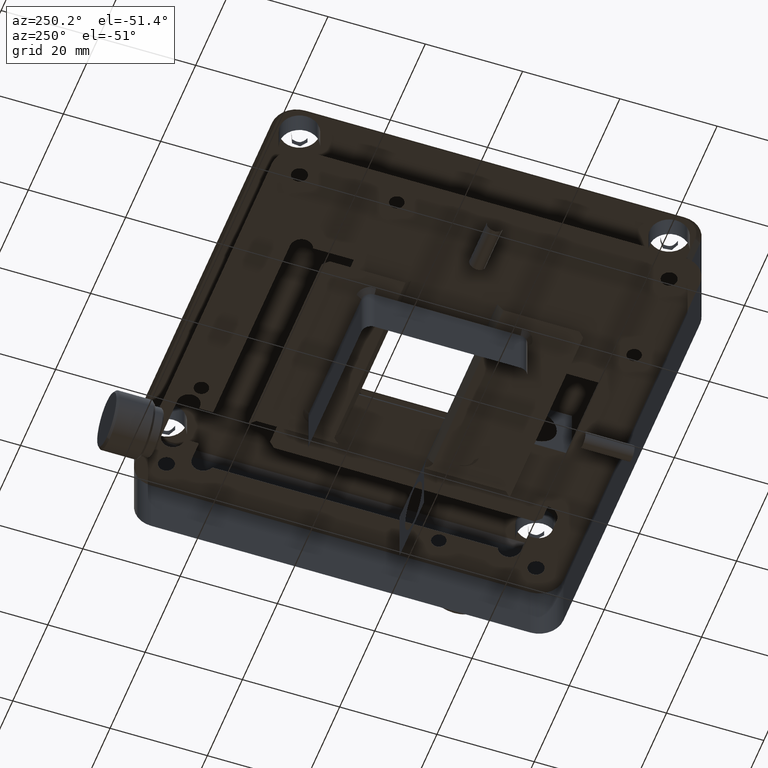
[diagram: clean part render]
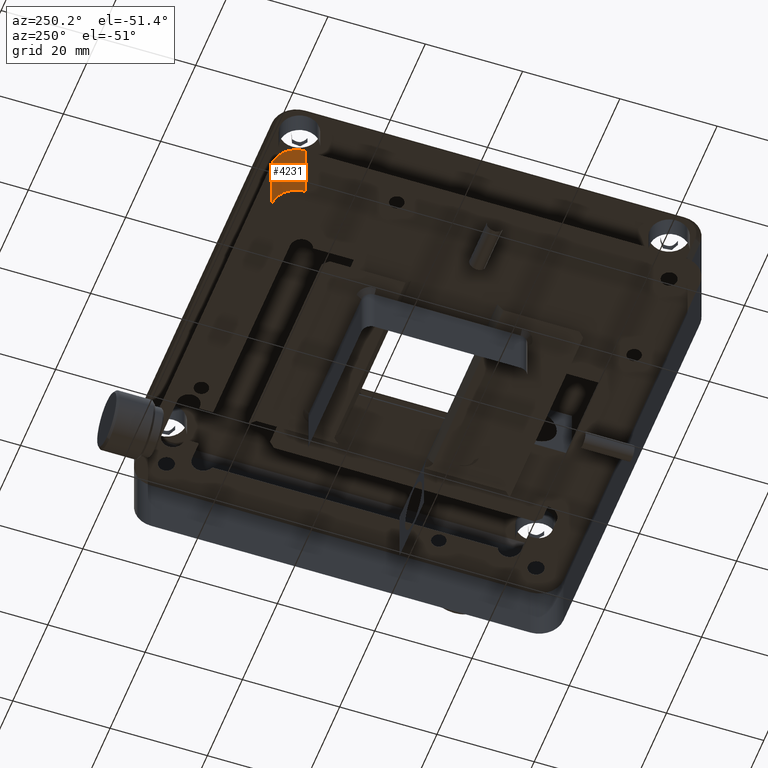
[diagram: same view with one face highlighted and labeled with its STEP entity id]
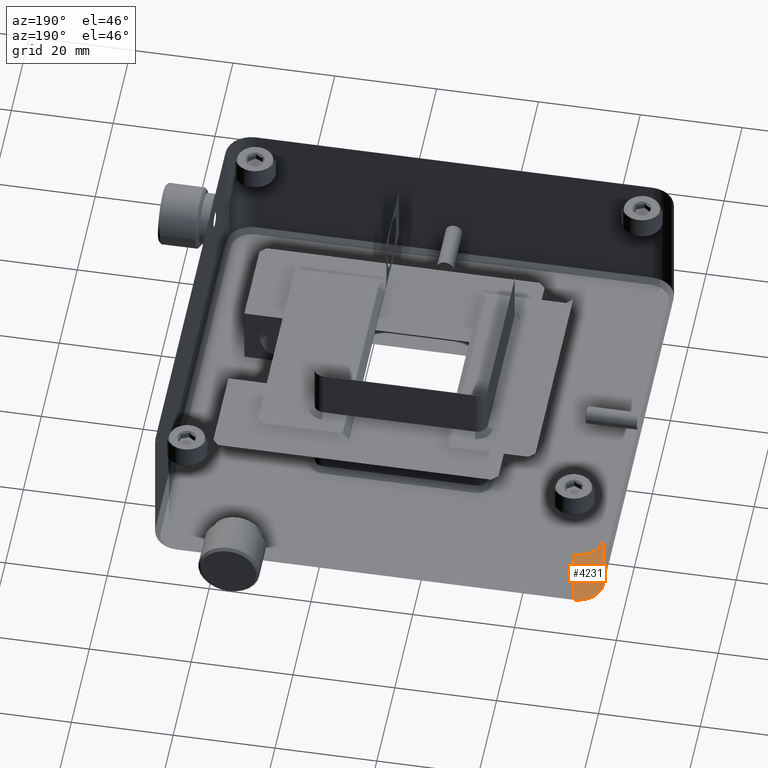
[diagram: same view with one face highlighted and labeled with its STEP entity id]
A machine part, auxiliary view. The second image highlights one B-rep face of the part: STEP entity #4231.
A second angle (auxiliary view) of the same face is appended — the face is thin or edge-on in the first view.
In plain terms, the highlighted cylindrical surface (edge-blend (fillet) strip) has radius 5 mm, axis along (0, 0, -1).
Its self-contained STEP definition (entity closure, byte-faithful):
#86 = ORIENTED_EDGE ( 'NONE', *, *, #1702, .T. ) ;
#175 = CARTESIAN_POINT ( 'NONE',  ( 49.50874693731116594, 73.68000000000000682, 8.674000000000001265 ) ) ;
#256 = CARTESIAN_POINT ( 'NONE',  ( 44.50874693731953613, 68.68000000000000682, -3.825999999986702704 ) ) ;
#393 = CARTESIAN_POINT ( 'NONE',  ( 49.50874693731116594, 68.68000000000000682, 8.674000000000001265 ) ) ;
#741 = CARTESIAN_POINT ( 'NONE',  ( 49.50874693731116594, 68.68000000000000682, -3.825999999946816388 ) ) ;
#820 = DIRECTION ( 'NONE',  ( -0.000000000000000000, -0.000000000000000000, -1.000000000000000000 ) ) ;
#946 = FACE_OUTER_BOUND ( 'NONE', #3670, .T. ) ;
#1126 = VECTOR ( 'NONE', #4183, 1000.000000000000000 ) ;
#1405 = AXIS2_PLACEMENT_3D ( 'NONE', #393, #4238, #5887 ) ;
#1485 = DIRECTION ( 'NONE',  ( -1.000000000000000000, 0.000000000000000000, 0.000000000000000000 ) ) ;
#1702 = EDGE_CURVE ( 'NONE', #4021, #4374, #2497, .T. ) ;
#1983 = DIRECTION ( 'NONE',  ( 0.000000000000000000, 0.000000000000000000, -1.000000000000000000 ) ) ;
#2021 = EDGE_CURVE ( 'NONE', #4021, #4762, #4756, .T. ) ;
#2497 = CIRCLE ( 'NONE', #6133, 4.999999999966517450 ) ;
#2586 = CARTESIAN_POINT ( 'NONE',  ( 49.50874693731116594, 68.68000000000000682, 8.674000000000001265 ) ) ;
#2622 = VECTOR ( 'NONE', #5635, 1000.000000000000000 ) ;
#2685 = LINE ( 'NONE', #175, #2622 ) ;
#3056 = CYLINDRICAL_SURFACE ( 'NONE', #4443, 5.000000000000004441 ) ;
#3522 = DIRECTION ( 'NONE',  ( 0.000000000000000000, -1.000000000000000000, 0.000000000000000000 ) ) ;
#3549 = EDGE_CURVE ( 'NONE', #4030, #4374, #2685, .T. ) ;
#3670 = EDGE_LOOP ( 'NONE', ( #5469, #86, #6562, #4175 ) ) ;
#4021 = VERTEX_POINT ( 'NONE', #256 ) ;
#4030 = VERTEX_POINT ( 'NONE', #5445 ) ;
#4175 = ORIENTED_EDGE ( 'NONE', *, *, #6452, .F. ) ;
#4183 = DIRECTION ( 'NONE',  ( 0.000000000000000000, 0.000000000000000000, 1.000000000000000000 ) ) ;
#4231 = ADVANCED_FACE ( 'NONE', ( #946 ), #3056, .F. ) ;
#4238 = DIRECTION ( 'NONE',  ( 0.000000000000000000, 0.000000000000000000, -1.000000000000000000 ) ) ;
#4374 = VERTEX_POINT ( 'NONE', #7041 ) ;
#4443 = AXIS2_PLACEMENT_3D ( 'NONE', #2586, #1983, #1485 ) ;
#4756 = LINE ( 'NONE', #6396, #1126 ) ;
#4762 = VERTEX_POINT ( 'NONE', #5686 ) ;
#4819 = CIRCLE ( 'NONE', #1405, 5.000000000000004441 ) ;
#5445 = CARTESIAN_POINT ( 'NONE',  ( 49.50874693731116594, 73.67999999999999261, 8.674000000000001265 ) ) ;
#5469 = ORIENTED_EDGE ( 'NONE', *, *, #2021, .F. ) ;
#5635 = DIRECTION ( 'NONE',  ( 0.000000000000000000, 0.000000000000000000, -1.000000000000000000 ) ) ;
#5686 = CARTESIAN_POINT ( 'NONE',  ( 44.50874693731116594, 68.68000000000000682, 8.674000000000001265 ) ) ;
#5887 = DIRECTION ( 'NONE',  ( -1.000000000000000000, 0.000000000000000000, 0.000000000000000000 ) ) ;
#6133 = AXIS2_PLACEMENT_3D ( 'NONE', #741, #820, #3522 ) ;
#6396 = CARTESIAN_POINT ( 'NONE',  ( 44.50874693731116594, 68.68000000000000682, 8.674000000000001265 ) ) ;
#6452 = EDGE_CURVE ( 'NONE', #4762, #4030, #4819, .T. ) ;
#6562 = ORIENTED_EDGE ( 'NONE', *, *, #3549, .F. ) ;
#7041 = CARTESIAN_POINT ( 'NONE',  ( 49.50874693731116594, 73.67999999998350802, -3.825999999960111975 ) ) ;